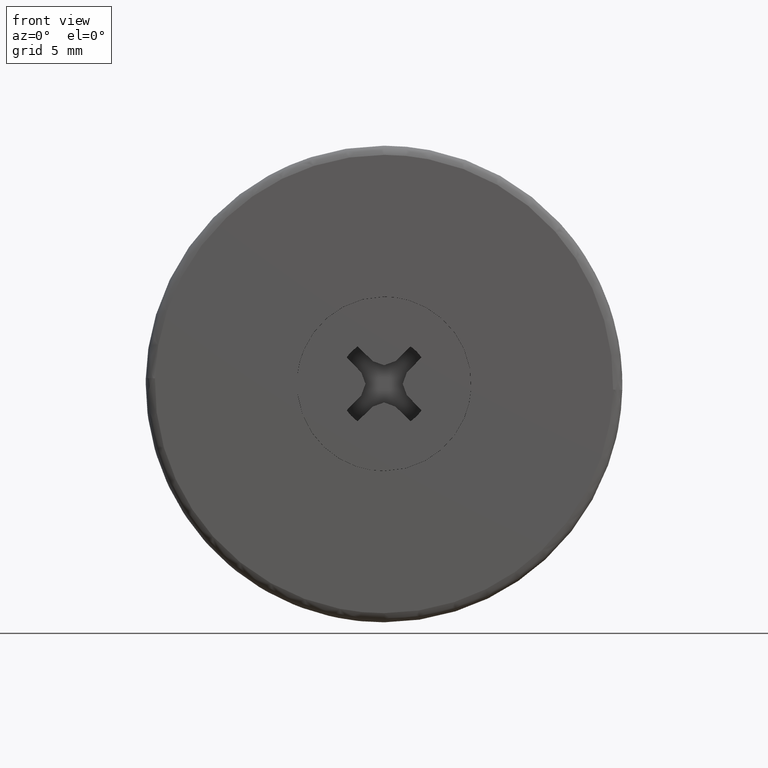
[diagram: clean part render]
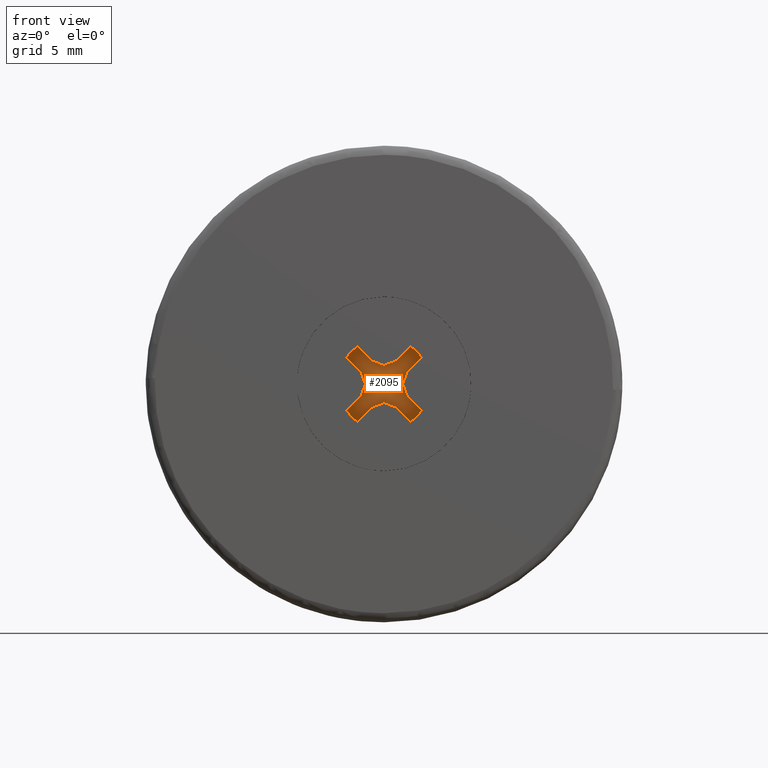
[diagram: same view with one face highlighted and labeled with its STEP entity id]
A machine part, front view. The second image highlights one B-rep face of the part: STEP entity #2095.
In plain terms, the highlighted face is a freeform B-spline surface patch.
Its self-contained STEP definition (entity closure, byte-faithful):
#1916=CARTESIAN_POINT('',(-2.243385805979850,2.0,2.243385805979850));
#1917=CARTESIAN_POINT('',(2.243385842451223,2.0,2.243385805979850));
#1918=CARTESIAN_POINT('',(-2.243385805979850,2.0,-2.243385842451223));
#1919=CARTESIAN_POINT('',(2.243385842451223,2.0,-2.243385842451223));
#1920=B_SPLINE_SURFACE_WITH_KNOTS('',1,1,((#1916,#1918),(#1917,#1919)),.UNSPECIFIED.,.F.,.F.,.U.,(2,2),(2,2),(0.0,4.486771648431072),(0.0,4.486771648431072),.UNSPECIFIED.);
#1921=CARTESIAN_POINT('',(1.445656829822642,2.0,2.039626517376930));
#1922=VERTEX_POINT('',#1921);
#1923=CARTESIAN_POINT('',(0.617430999999989,2.0,1.239818000000000));
#1924=VERTEX_POINT('',#1923);
#1925=CARTESIAN_POINT('',(1.445656829822642,2.0,2.039626517376930));
#1926=CARTESIAN_POINT('',(0.617430999999989,2.0,1.239818000000000));
#1927=QUASI_UNIFORM_CURVE('',1,(#1925,#1926),.UNSPECIFIED.,.F.,.U.);
#1928=EDGE_CURVE('',#1922,#1924,#1927,.T.);
#1929=ORIENTED_EDGE('',*,*,#1928,.T.);
#1930=CARTESIAN_POINT('',(0.0,2.0,1.015091000000000));
#1931=VERTEX_POINT('',#1930);
#1932=CARTESIAN_POINT('',(0.617430999999989,2.0,1.239818000000000));
#1933=CARTESIAN_POINT('',(0.0,2.0,1.015091000000000));
#1934=QUASI_UNIFORM_CURVE('',1,(#1932,#1933),.UNSPECIFIED.,.F.,.U.);
#1935=EDGE_CURVE('',#1924,#1931,#1934,.T.);
#1936=ORIENTED_EDGE('',*,*,#1935,.T.);
#1937=CARTESIAN_POINT('',(-0.617431000000011,2.0,1.239818000000000));
#1938=VERTEX_POINT('',#1937);
#1939=CARTESIAN_POINT('',(0.0,2.0,1.015091000000000));
#1940=CARTESIAN_POINT('',(-0.617431000000011,2.0,1.239818000000000));
#1941=QUASI_UNIFORM_CURVE('',1,(#1939,#1940),.UNSPECIFIED.,.F.,.U.);
#1942=EDGE_CURVE('',#1931,#1938,#1941,.T.);
#1943=ORIENTED_EDGE('',*,*,#1942,.T.);
#1944=CARTESIAN_POINT('',(-1.445657000000000,2.0,2.039627000000000));
#1945=VERTEX_POINT('',#1944);
#1946=CARTESIAN_POINT('',(-0.617431000000011,2.0,1.239818000000000));
#1947=CARTESIAN_POINT('',(-1.445657000000000,2.0,2.039627000000000));
#1948=QUASI_UNIFORM_CURVE('',1,(#1946,#1947),.UNSPECIFIED.,.F.,.U.);
#1949=EDGE_CURVE('',#1938,#1945,#1948,.T.);
#1950=ORIENTED_EDGE('',*,*,#1949,.T.);
#1951=CARTESIAN_POINT('',(-2.039626517376930,2.0,1.445656829822642));
#1952=VERTEX_POINT('',#1951);
#1953=CARTESIAN_POINT('',(-1.445657000000000,2.0,2.039627000000000));
#1954=CARTESIAN_POINT('',(-1.793254445034762,2.000000000000000,1.793254545631756));
#1955=CARTESIAN_POINT('',(-2.039626517376930,2.0,1.445656829822643));
#1963=(BOUNDED_CURVE()B_SPLINE_CURVE(2,(#1953,#1954,#1955),.UNSPECIFIED.,.F.,.U.)CURVE()GEOMETRIC_REPRESENTATION_ITEM()QUASI_UNIFORM_CURVE()RATIONAL_B_SPLINE_CURVE((1.0,0.985786990952361,1.0))REPRESENTATION_ITEM(''));
#1964=EDGE_CURVE('',#1945,#1952,#1963,.T.);
#1965=ORIENTED_EDGE('',*,*,#1964,.T.);
#1966=CARTESIAN_POINT('',(-1.239818000000000,2.0,0.617431000000000));
#1967=VERTEX_POINT('',#1966);
#1968=CARTESIAN_POINT('',(-2.039626517376930,2.0,1.445656829822642));
#1969=CARTESIAN_POINT('',(-1.239818000000000,2.0,0.617431000000000));
#1970=QUASI_UNIFORM_CURVE('',1,(#1968,#1969),.UNSPECIFIED.,.F.,.U.);
#1971=EDGE_CURVE('',#1952,#1967,#1970,.T.);
#1972=ORIENTED_EDGE('',*,*,#1971,.T.);
#1973=CARTESIAN_POINT('',(-1.015091000000000,2.0,0.0));
#1974=VERTEX_POINT('',#1973);
#1975=CARTESIAN_POINT('',(-1.239818000000000,2.0,0.617431000000000));
#1976=CARTESIAN_POINT('',(-1.015091000000000,2.0,0.0));
#1977=QUASI_UNIFORM_CURVE('',1,(#1975,#1976),.UNSPECIFIED.,.F.,.U.);
#1978=EDGE_CURVE('',#1967,#1974,#1977,.T.);
#1979=ORIENTED_EDGE('',*,*,#1978,.T.);
#1980=CARTESIAN_POINT('',(-1.239818000000000,2.0,-0.617431000000000));
#1981=VERTEX_POINT('',#1980);
#1982=CARTESIAN_POINT('',(-1.015091000000000,2.0,0.0));
#1983=CARTESIAN_POINT('',(-1.239818000000000,2.0,-0.617431000000000));
#1984=QUASI_UNIFORM_CURVE('',1,(#1982,#1983),.UNSPECIFIED.,.F.,.U.);
#1985=EDGE_CURVE('',#1974,#1981,#1984,.T.);
#1986=ORIENTED_EDGE('',*,*,#1985,.T.);
#1987=CARTESIAN_POINT('',(-2.039627000000000,2.0,-1.445657000000000));
#1988=VERTEX_POINT('',#1987);
#1989=CARTESIAN_POINT('',(-1.239818000000000,2.0,-0.617431000000000));
#1990=CARTESIAN_POINT('',(-2.039627000000000,2.0,-1.445657000000000));
#1991=QUASI_UNIFORM_CURVE('',1,(#1989,#1990),.UNSPECIFIED.,.F.,.U.);
#1992=EDGE_CURVE('',#1981,#1988,#1991,.T.);
#1993=ORIENTED_EDGE('',*,*,#1992,.T.);
#1994=CARTESIAN_POINT('',(-1.445656829822644,2.0,-2.039626517376930));
#1995=VERTEX_POINT('',#1994);
#1996=CARTESIAN_POINT('',(-2.039627000000000,2.0,-1.445657000000000));
#1997=CARTESIAN_POINT('',(-1.793254545631755,2.000000000000000,-1.793254445034763));
#1998=CARTESIAN_POINT('',(-1.445656829822643,2.0,-2.039626517376930));
#2006=(BOUNDED_CURVE()B_SPLINE_CURVE(2,(#1996,#1997,#1998),.UNSPECIFIED.,.F.,.U.)CURVE()GEOMETRIC_REPRESENTATION_ITEM()QUASI_UNIFORM_CURVE()RATIONAL_B_SPLINE_CURVE((1.0,0.985786990952361,1.0))REPRESENTATION_ITEM(''));
#2007=EDGE_CURVE('',#1988,#1995,#2006,.T.);
#2008=ORIENTED_EDGE('',*,*,#2007,.T.);
#2009=CARTESIAN_POINT('',(-0.617431000000011,2.0,-1.239818000000000));
#2010=VERTEX_POINT('',#2009);
#2011=CARTESIAN_POINT('',(-1.445656829822644,2.0,-2.039626517376930));
#2012=CARTESIAN_POINT('',(-0.617431000000011,2.0,-1.239818000000000));
#2013=QUASI_UNIFORM_CURVE('',1,(#2011,#2012),.UNSPECIFIED.,.F.,.U.);
#2014=EDGE_CURVE('',#1995,#2010,#2013,.T.);
#2015=ORIENTED_EDGE('',*,*,#2014,.T.);
#2016=CARTESIAN_POINT('',(0.0,2.0,-1.015091000000000));
#2017=VERTEX_POINT('',#2016);
#2018=CARTESIAN_POINT('',(-0.617431000000011,2.0,-1.239818000000000));
#2019=CARTESIAN_POINT('',(0.0,2.0,-1.015091000000000));
#2020=QUASI_UNIFORM_CURVE('',1,(#2018,#2019),.UNSPECIFIED.,.F.,.U.);
#2021=EDGE_CURVE('',#2010,#2017,#2020,.T.);
#2022=ORIENTED_EDGE('',*,*,#2021,.T.);
#2023=CARTESIAN_POINT('',(0.617430999999989,2.0,-1.239818000000000));
#2024=VERTEX_POINT('',#2023);
#2025=CARTESIAN_POINT('',(0.0,2.0,-1.015091000000000));
#2026=CARTESIAN_POINT('',(0.617430999999989,2.0,-1.239818000000000));
#2027=QUASI_UNIFORM_CURVE('',1,(#2025,#2026),.UNSPECIFIED.,.F.,.U.);
#2028=EDGE_CURVE('',#2017,#2024,#2027,.T.);
#2029=ORIENTED_EDGE('',*,*,#2028,.T.);
#2030=CARTESIAN_POINT('',(1.445657000000000,2.0,-2.039627000000000));
#2031=VERTEX_POINT('',#2030);
#2032=CARTESIAN_POINT('',(0.617430999999989,2.0,-1.239818000000000));
#2033=CARTESIAN_POINT('',(1.445657000000000,2.0,-2.039627000000000));
#2034=QUASI_UNIFORM_CURVE('',1,(#2032,#2033),.UNSPECIFIED.,.F.,.U.);
#2035=EDGE_CURVE('',#2024,#2031,#2034,.T.);
#2036=ORIENTED_EDGE('',*,*,#2035,.T.);
#2037=CARTESIAN_POINT('',(2.039626517376926,2.0,-1.445656829822650));
#2038=VERTEX_POINT('',#2037);
#2039=CARTESIAN_POINT('',(1.445657000000000,2.0,-2.039627000000000));
#2040=CARTESIAN_POINT('',(1.793254445034758,2.000000000000000,-1.793254545631758));
#2041=CARTESIAN_POINT('',(2.039626517376925,2.0,-1.445656829822651));
#2049=(BOUNDED_CURVE()B_SPLINE_CURVE(2,(#2039,#2040,#2041),.UNSPECIFIED.,.F.,.U.)CURVE()GEOMETRIC_REPRESENTATION_ITEM()QUASI_UNIFORM_CURVE()RATIONAL_B_SPLINE_CURVE((1.0,0.985786990952361,1.0))REPRESENTATION_ITEM(''));
#2050=EDGE_CURVE('',#2031,#2038,#2049,.T.);
#2051=ORIENTED_EDGE('',*,*,#2050,.T.);
#2052=CARTESIAN_POINT('',(1.239818000000000,2.0,-0.617431000000000));
#2053=VERTEX_POINT('',#2052);
#2054=CARTESIAN_POINT('',(2.039626517376926,2.0,-1.445656829822650));
#2055=CARTESIAN_POINT('',(1.239818000000000,2.0,-0.617431000000000));
#2056=QUASI_UNIFORM_CURVE('',1,(#2054,#2055),.UNSPECIFIED.,.F.,.U.);
#2057=EDGE_CURVE('',#2038,#2053,#2056,.T.);
#2058=ORIENTED_EDGE('',*,*,#2057,.T.);
#2059=CARTESIAN_POINT('',(1.015091000000000,2.0,0.0));
#2060=VERTEX_POINT('',#2059);
#2061=CARTESIAN_POINT('',(1.239818000000000,2.0,-0.617431000000000));
#2062=CARTESIAN_POINT('',(1.015091000000000,2.0,0.0));
#2063=QUASI_UNIFORM_CURVE('',1,(#2061,#2062),.UNSPECIFIED.,.F.,.U.);
#2064=EDGE_CURVE('',#2053,#2060,#2063,.T.);
#2065=ORIENTED_EDGE('',*,*,#2064,.T.);
#2066=CARTESIAN_POINT('',(1.239818000000000,2.0,0.617431000000000));
#2067=VERTEX_POINT('',#2066);
#2068=CARTESIAN_POINT('',(1.015091000000000,2.0,0.0));
#2069=CARTESIAN_POINT('',(1.239818000000000,2.0,0.617431000000000));
#2070=QUASI_UNIFORM_CURVE('',1,(#2068,#2069),.UNSPECIFIED.,.F.,.U.);
#2071=EDGE_CURVE('',#2060,#2067,#2070,.T.);
#2072=ORIENTED_EDGE('',*,*,#2071,.T.);
#2073=CARTESIAN_POINT('',(2.039627000000000,2.0,1.445657000000000));
#2074=VERTEX_POINT('',#2073);
#2075=CARTESIAN_POINT('',(1.239818000000000,2.0,0.617431000000000));
#2076=CARTESIAN_POINT('',(2.039627000000000,2.0,1.445657000000000));
#2077=QUASI_UNIFORM_CURVE('',1,(#2075,#2076),.UNSPECIFIED.,.F.,.U.);
#2078=EDGE_CURVE('',#2067,#2074,#2077,.T.);
#2079=ORIENTED_EDGE('',*,*,#2078,.T.);
#2080=CARTESIAN_POINT('',(2.039627000000000,2.0,1.445657000000000));
#2081=CARTESIAN_POINT('',(1.793254545631756,2.000000000000000,1.793254445034762));
#2082=CARTESIAN_POINT('',(1.445656829822644,2.0,2.039626517376930));
#2090=(BOUNDED_CURVE()B_SPLINE_CURVE(2,(#2080,#2081,#2082),.UNSPECIFIED.,.F.,.U.)CURVE()GEOMETRIC_REPRESENTATION_ITEM()QUASI_UNIFORM_CURVE()RATIONAL_B_SPLINE_CURVE((1.0,0.985786990952361,1.0))REPRESENTATION_ITEM(''));
#2091=EDGE_CURVE('',#2074,#1922,#2090,.T.);
#2092=ORIENTED_EDGE('',*,*,#2091,.T.);
#2093=EDGE_LOOP('',(#1929,#1936,#1943,#1950,#1965,#1972,#1979,#1986,#1993,#2008,#2015,#2022,#2029,#2036,#2051,#2058,#2065,#2072,#2079,#2092));
#2094=FACE_OUTER_BOUND('',#2093,.T.);
#2095=ADVANCED_FACE('',(#2094),#1920,.F.);